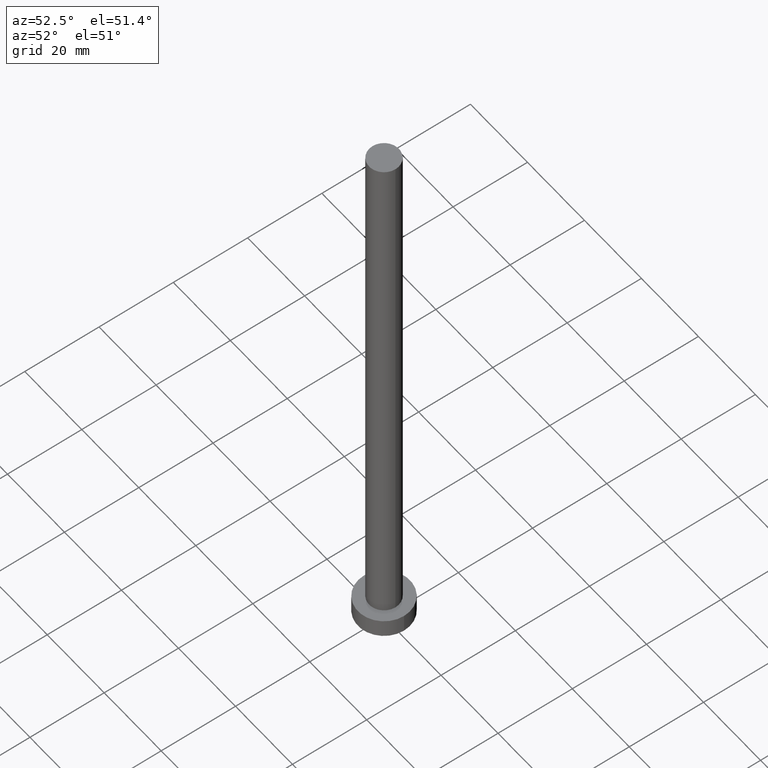
[diagram: clean part render]
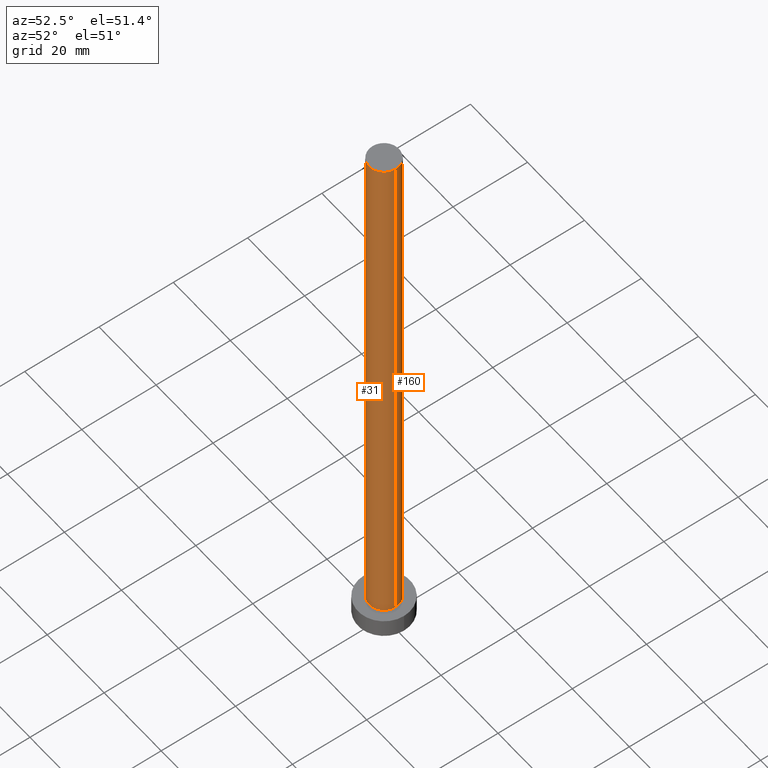
[diagram: same view with one multi-face feature highlighted, each face labeled with its STEP entity id]
A machine part, auxiliary view. The highlighted faces form ONE feature: a constant-radius fillet chain: 2 tangent blend faces with common blend radius 4 mm. The faces share edges in the B-rep.
Their STEP definitions:
[1] entity #160 (Cylinder):
#6 = LINE ( 'NONE', #7, #150 ) ;
#7 = CARTESIAN_POINT ( 'NONE',  ( 4.000000000000000000, 4.898587196589412829E-16, 155.0000000000000000 ) ) ;
#10 = DIRECTION ( 'NONE',  ( -0.000000000000000000, -0.000000000000000000, -1.000000000000000000 ) ) ;
#19 = CIRCLE ( 'NONE', #95, 4.000000000000000000 ) ;
#20 = ORIENTED_EDGE ( 'NONE', *, *, #115, .T. ) ;
#24 = DIRECTION ( 'NONE',  ( -0.000000000000000000, -0.000000000000000000, -1.000000000000000000 ) ) ;
#25 = FACE_OUTER_BOUND ( 'NONE', #57, .T. ) ;
#26 = CARTESIAN_POINT ( 'NONE',  ( 4.000000000000000000, 4.898587196589412829E-16, 155.0000000000000000 ) ) ;
#37 = ORIENTED_EDGE ( 'NONE', *, *, #117, .T. ) ;
#39 = CIRCLE ( 'NONE', #189, 4.000000000000000000 ) ;
#57 = EDGE_LOOP ( 'NONE', ( #154, #20, #37, #112 ) ) ;
#65 = EDGE_CURVE ( 'NONE', #136, #179, #116, .T. ) ;
#80 = DIRECTION ( 'NONE',  ( -0.000000000000000000, -0.000000000000000000, -1.000000000000000000 ) ) ;
#85 = CARTESIAN_POINT ( 'NONE',  ( 4.000000000000000000, 4.898587196589412829E-16, 5.000000000000000000 ) ) ;
#95 = AXIS2_PLACEMENT_3D ( 'NONE', #127, #252, #105 ) ;
#99 = CARTESIAN_POINT ( 'NONE',  ( -4.000000000000000000, 0.000000000000000000, 5.000000000000000000 ) ) ;
#100 = DIRECTION ( 'NONE',  ( 0.000000000000000000, 0.000000000000000000, 1.000000000000000000 ) ) ;
#105 = DIRECTION ( 'NONE',  ( 1.000000000000000000, 0.000000000000000000, 0.000000000000000000 ) ) ;
#112 = ORIENTED_EDGE ( 'NONE', *, *, #65, .F. ) ;
#115 = EDGE_CURVE ( 'NONE', #174, #159, #6, .T. ) ;
#116 = LINE ( 'NONE', #188, #192 ) ;
#117 = EDGE_CURVE ( 'NONE', #159, #179, #39, .T. ) ;
#120 = CYLINDRICAL_SURFACE ( 'NONE', #236, 4.000000000000000000 ) ;
#127 = CARTESIAN_POINT ( 'NONE',  ( 0.000000000000000000, 0.000000000000000000, 155.0000000000000000 ) ) ;
#136 = VERTEX_POINT ( 'NONE', #183 ) ;
#142 = DIRECTION ( 'NONE',  ( 1.000000000000000000, 0.000000000000000000, 0.000000000000000000 ) ) ;
#150 = VECTOR ( 'NONE', #80, 1000.000000000000000 ) ;
#154 = ORIENTED_EDGE ( 'NONE', *, *, #231, .F. ) ;
#159 = VERTEX_POINT ( 'NONE', #85 ) ;
#160 = ADVANCED_FACE ( 'NONE', ( #25 ), #120, .T. ) ;
#162 = DIRECTION ( 'NONE',  ( -1.000000000000000000, 0.000000000000000000, 0.000000000000000000 ) ) ;
#174 = VERTEX_POINT ( 'NONE', #26 ) ;
#179 = VERTEX_POINT ( 'NONE', #99 ) ;
#181 = CARTESIAN_POINT ( 'NONE',  ( 0.000000000000000000, 0.000000000000000000, 5.000000000000000000 ) ) ;
#183 = CARTESIAN_POINT ( 'NONE',  ( -4.000000000000000000, 0.000000000000000000, 155.0000000000000000 ) ) ;
#188 = CARTESIAN_POINT ( 'NONE',  ( -4.000000000000000000, 0.000000000000000000, 155.0000000000000000 ) ) ;
#189 = AXIS2_PLACEMENT_3D ( 'NONE', #181, #100, #142 ) ;
#192 = VECTOR ( 'NONE', #10, 1000.000000000000000 ) ;
#210 = CARTESIAN_POINT ( 'NONE',  ( 0.000000000000000000, 0.000000000000000000, 155.0000000000000000 ) ) ;
#231 = EDGE_CURVE ( 'NONE', #174, #136, #19, .T. ) ;
#236 = AXIS2_PLACEMENT_3D ( 'NONE', #210, #24, #162 ) ;
#252 = DIRECTION ( 'NONE',  ( 0.000000000000000000, 0.000000000000000000, 1.000000000000000000 ) ) ;
[2] entity #31 (Cylinder):
#1 = ORIENTED_EDGE ( 'NONE', *, *, #53, .F. ) ;
#4 = ORIENTED_EDGE ( 'NONE', *, *, #65, .T. ) ;
#5 = DIRECTION ( 'NONE',  ( 0.000000000000000000, 0.000000000000000000, 1.000000000000000000 ) ) ;
#6 = LINE ( 'NONE', #7, #150 ) ;
#7 = CARTESIAN_POINT ( 'NONE',  ( 4.000000000000000000, 4.898587196589412829E-16, 155.0000000000000000 ) ) ;
#10 = DIRECTION ( 'NONE',  ( -0.000000000000000000, -0.000000000000000000, -1.000000000000000000 ) ) ;
#18 = CIRCLE ( 'NONE', #108, 4.000000000000000000 ) ;
#26 = CARTESIAN_POINT ( 'NONE',  ( 4.000000000000000000, 4.898587196589412829E-16, 155.0000000000000000 ) ) ;
#31 = ADVANCED_FACE ( 'NONE', ( #156 ), #224, .T. ) ;
#53 = EDGE_CURVE ( 'NONE', #136, #174, #18, .T. ) ;
#54 = ORIENTED_EDGE ( 'NONE', *, *, #115, .F. ) ;
#60 = CARTESIAN_POINT ( 'NONE',  ( 0.000000000000000000, 0.000000000000000000, 5.000000000000000000 ) ) ;
#65 = EDGE_CURVE ( 'NONE', #136, #179, #116, .T. ) ;
#73 = EDGE_LOOP ( 'NONE', ( #54, #1, #4, #130 ) ) ;
#76 = AXIS2_PLACEMENT_3D ( 'NONE', #119, #211, #103 ) ;
#80 = DIRECTION ( 'NONE',  ( -0.000000000000000000, -0.000000000000000000, -1.000000000000000000 ) ) ;
#85 = CARTESIAN_POINT ( 'NONE',  ( 4.000000000000000000, 4.898587196589412829E-16, 5.000000000000000000 ) ) ;
#88 = CIRCLE ( 'NONE', #90, 4.000000000000000000 ) ;
#90 = AXIS2_PLACEMENT_3D ( 'NONE', #60, #5, #223 ) ;
#99 = CARTESIAN_POINT ( 'NONE',  ( -4.000000000000000000, 0.000000000000000000, 5.000000000000000000 ) ) ;
#101 = CARTESIAN_POINT ( 'NONE',  ( 0.000000000000000000, 0.000000000000000000, 155.0000000000000000 ) ) ;
#103 = DIRECTION ( 'NONE',  ( -1.000000000000000000, 0.000000000000000000, 0.000000000000000000 ) ) ;
#108 = AXIS2_PLACEMENT_3D ( 'NONE', #101, #163, #186 ) ;
#115 = EDGE_CURVE ( 'NONE', #174, #159, #6, .T. ) ;
#116 = LINE ( 'NONE', #188, #192 ) ;
#119 = CARTESIAN_POINT ( 'NONE',  ( 0.000000000000000000, 0.000000000000000000, 155.0000000000000000 ) ) ;
#130 = ORIENTED_EDGE ( 'NONE', *, *, #207, .T. ) ;
#136 = VERTEX_POINT ( 'NONE', #183 ) ;
#150 = VECTOR ( 'NONE', #80, 1000.000000000000000 ) ;
#156 = FACE_OUTER_BOUND ( 'NONE', #73, .T. ) ;
#159 = VERTEX_POINT ( 'NONE', #85 ) ;
#163 = DIRECTION ( 'NONE',  ( 0.000000000000000000, 0.000000000000000000, 1.000000000000000000 ) ) ;
#174 = VERTEX_POINT ( 'NONE', #26 ) ;
#179 = VERTEX_POINT ( 'NONE', #99 ) ;
#183 = CARTESIAN_POINT ( 'NONE',  ( -4.000000000000000000, 0.000000000000000000, 155.0000000000000000 ) ) ;
#186 = DIRECTION ( 'NONE',  ( 1.000000000000000000, 0.000000000000000000, 0.000000000000000000 ) ) ;
#188 = CARTESIAN_POINT ( 'NONE',  ( -4.000000000000000000, 0.000000000000000000, 155.0000000000000000 ) ) ;
#192 = VECTOR ( 'NONE', #10, 1000.000000000000000 ) ;
#207 = EDGE_CURVE ( 'NONE', #179, #159, #88, .T. ) ;
#211 = DIRECTION ( 'NONE',  ( -0.000000000000000000, -0.000000000000000000, -1.000000000000000000 ) ) ;
#223 = DIRECTION ( 'NONE',  ( 1.000000000000000000, 0.000000000000000000, 0.000000000000000000 ) ) ;
#224 = CYLINDRICAL_SURFACE ( 'NONE', #76, 4.000000000000000000 ) ;